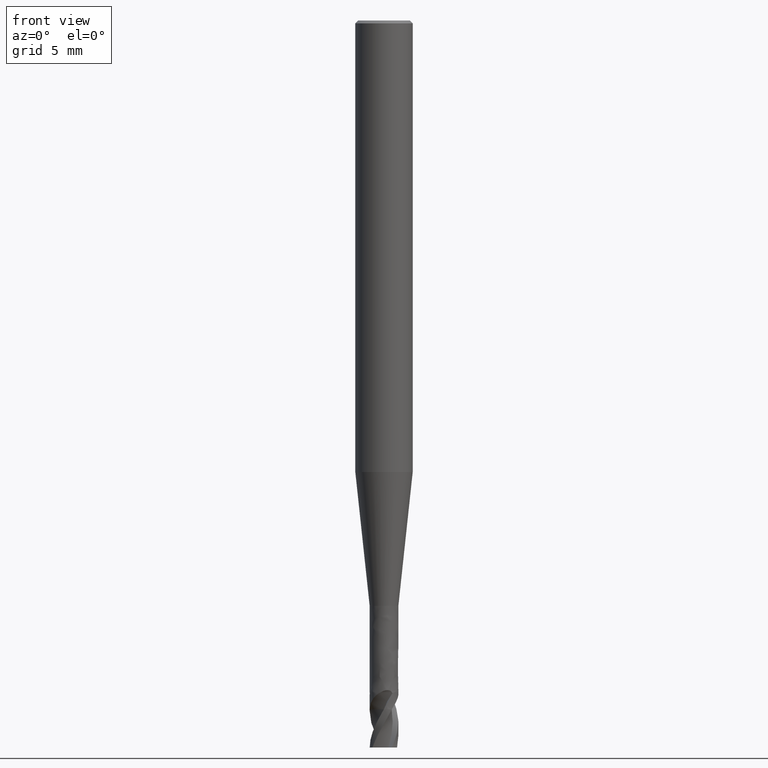
[diagram: clean part render]
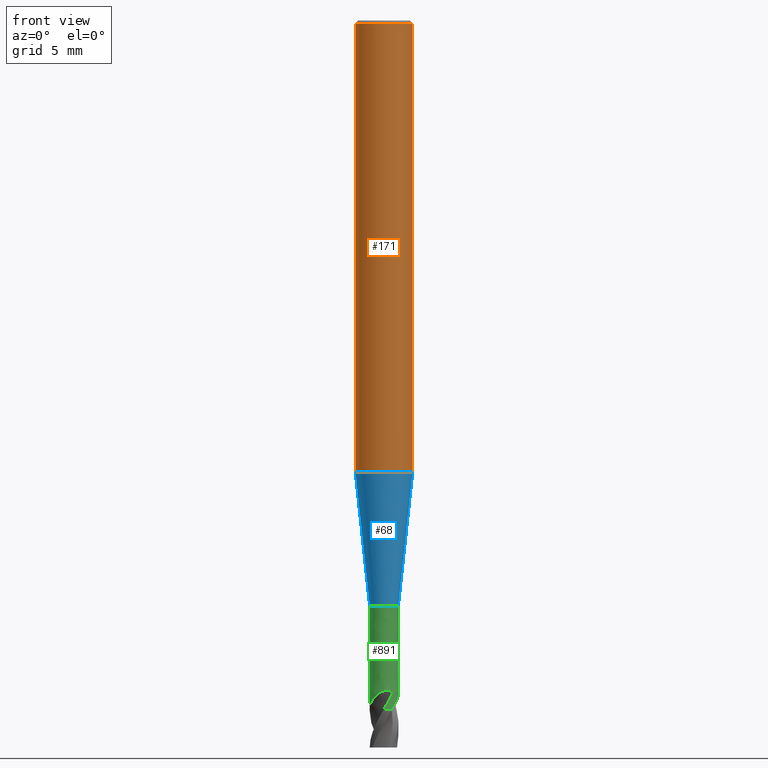
[diagram: same view with three faces highlighted in distinct colors, each labeled with its STEP entity id]
A machine part, front view with three faces highlighted in distinct colors.
Their STEP definitions:

[orange] entity #171 — the highlighted face is a freeform B-spline surface patch.
#73 = VERTEX_POINT('', #74);
#74 = CARTESIAN_POINT('', (-1.5, 1.53693173292993E-15, -23.6));
#82 = EDGE_CURVE('', #73, #73, #83, .T.);
#83 = CIRCLE('', #84, 1.5);
#84 = AXIS2_PLACEMENT_3D('', #85, #86, #87);
#85 = CARTESIAN_POINT('', (8.84858271770496E-32, 1.44508322299388E-15, -23.6));
#86 = DIRECTION('', (3.74939945665464E-33, 6.12323399573677E-17, -1.));
#87 = DIRECTION('', (-1., 6.12323399573677E-17, 0.));
#120 = VERTEX_POINT('', #121);
#121 = CARTESIAN_POINT('', (-1.5, 1.01033360929657E-16, -0.149999999999999));
#137 = EDGE_CURVE('', #120, #120, #138, .T.);
#138 = CIRCLE('', #139, 1.5);
#139 = AXIS2_PLACEMENT_3D('', #140, #141, #142);
#140 = CARTESIAN_POINT('', (5.62409918498176E-34, 9.18485099360502E-18, -0.149999999999999));
#141 = DIRECTION('', (3.74939945665464E-33, 6.12323399573677E-17, -1.));
#142 = DIRECTION('', (-1., 6.12323399573677E-17, 0.));
#171 = ADVANCED_FACE('', (#172), #183, .T.);
#172 = FACE_OUTER_BOUND('', #173, .T.);
#173 = EDGE_LOOP('', (#174, #180, #181, #182));
#174 = ORIENTED_EDGE('', *, *, #175, .T.);
#175 = EDGE_CURVE('', #73, #120, #176, .T.);
#176 = LINE('', #177, #178);
#177 = CARTESIAN_POINT('', (-1.5, 1.53693173292993E-15, -23.6));
#178 = VECTOR('', #179, 23.45);
#179 = DIRECTION('', (0., -1.43589837200027E-15, 23.45));
#180 = ORIENTED_EDGE('', *, *, #137, .T.);
#181 = ORIENTED_EDGE('', *, *, #175, .F.);
#182 = ORIENTED_EDGE('', *, *, #82, .F.);
#183 = (
   BOUNDED_SURFACE ()
   B_SPLINE_SURFACE (1, 2, ((#184, #185, #186, #187, #188, #189, #190, #191, #192), (#193, #194, #195, #196, #197, #198, #199, #200, #201)), .UNSPECIFIED., .F., .T., .U.)
   B_SPLINE_SURFACE_WITH_KNOTS ((2, 2), (3, 2, 2, 2, 3), (0., 1.), (0., 2.35619449019235, 4.71238898038469, 7.06858347057704, 9.42477796076938), .UNSPECIFIED.)
   GEOMETRIC_REPRESENTATION_ITEM ()
   RATIONAL_B_SPLINE_SURFACE (((1., 0.707106781186548, 1., 0.707106781186548, 1., 0.707106781186548, 1., 0.707106781186548, 1.), (1., 0.707106781186548, 1., 0.707106781186548, 1., 0.707106781186548, 1., 0.707106781186548, 1.)))
   REPRESENTATION_ITEM ('')
   SURFACE ()
);
#184 = CARTESIAN_POINT('', (-1.5, 1.53693173292993E-15, -23.6));
#185 = CARTESIAN_POINT('', (-1.5, 1.5, -23.6));
#186 = CARTESIAN_POINT('', (8.62816615085482E-32, 1.5, -23.6));
#187 = CARTESIAN_POINT('', (1.5, 1.5, -23.6));
#188 = CARTESIAN_POINT('', (1.5, 1.53693173292993E-15, -23.6));
#189 = CARTESIAN_POINT('', (1.5, -1.5, -23.6));
#190 = CARTESIAN_POINT('', (1.83697019872103E-16, -1.5, -23.6));
#191 = CARTESIAN_POINT('', (-1.5, -1.5, -23.6));
#192 = CARTESIAN_POINT('', (-1.5, 1.53693173292993E-15, -23.6));
#193 = CARTESIAN_POINT('', (-1.5, 1.01033360929657E-16, -0.149999999999999));
#194 = CARTESIAN_POINT('', (-1.5, 1.5, -0.149999999999995));
#195 = CARTESIAN_POINT('', (0., 1.5, -0.149999999999998));
#196 = CARTESIAN_POINT('', (1.5, 1.5, -0.149999999999995));
#197 = CARTESIAN_POINT('', (1.5, 1.01033360929656E-16, -0.149999999999999));
#198 = CARTESIAN_POINT('', (1.5, -1.5, -0.149999999999995));
#199 = CARTESIAN_POINT('', (1.83697019872103E-16, -1.5, -0.149999999999999));
#200 = CARTESIAN_POINT('', (-1.5, -1.5, -0.149999999999995));
#201 = CARTESIAN_POINT('', (-1.5, 1.01033360929657E-16, -0.149999999999999));

[blue] entity #68 — the highlighted face is a freeform B-spline surface patch.
#68 = ADVANCED_FACE('', (#69), #96, .T.);
#69 = FACE_OUTER_BOUND('', #70, .T.);
#70 = EDGE_LOOP('', (#71, #81, #88, #89));
#71 = ORIENTED_EDGE('', *, *, #72, .F.);
#72 = EDGE_CURVE('', #73, #75, #77, .T.);
#73 = VERTEX_POINT('', #74);
#74 = CARTESIAN_POINT('', (-1.5, 1.53693173292993E-15, -23.6));
#75 = VERTEX_POINT('', #76);
#76 = CARTESIAN_POINT('', (-0.75, 1.91963385766348E-15, -30.6));
#77 = LINE('', #78, #79);
#78 = CARTESIAN_POINT('', (-1.5, 1.53693173292993E-15, -23.6));
#79 = VECTOR('', #80, 7.04006392016436);
#80 = DIRECTION('', (0.75, 3.82702124733548E-16, -7.));
#81 = ORIENTED_EDGE('', *, *, #82, .T.);
#82 = EDGE_CURVE('', #73, #73, #83, .T.);
#83 = CIRCLE('', #84, 1.5);
#84 = AXIS2_PLACEMENT_3D('', #85, #86, #87);
#85 = CARTESIAN_POINT('', (8.84858271770496E-32, 1.44508322299388E-15, -23.6));
#86 = DIRECTION('', (3.74939945665464E-33, 6.12323399573677E-17, -1.));
#87 = DIRECTION('', (-1., 6.12323399573677E-17, 0.));
#88 = ORIENTED_EDGE('', *, *, #72, .T.);
#89 = ORIENTED_EDGE('', *, *, #90, .F.);
#90 = EDGE_CURVE('', #75, #75, #91, .T.);
#91 = CIRCLE('', #92, 0.75);
#92 = AXIS2_PLACEMENT_3D('', #93, #94, #95);
#93 = CARTESIAN_POINT('', (1.14731623373632E-31, 1.87370960269545E-15, -30.6));
#94 = DIRECTION('', (3.74939945665464E-33, 6.12323399573677E-17, -1.));
#95 = DIRECTION('', (-1., 6.12323399573677E-17, 0.));
#96 = (
   BOUNDED_SURFACE ()
   B_SPLINE_SURFACE (2, 1, ((#97, #98), (#99, #100), (#101, #102), (#103, #104), (#105, #106), (#107, #108), (#109, #110), (#111, #112), (#113, #114)), .UNSPECIFIED., .T., .F., .U.)
   B_SPLINE_SURFACE_WITH_KNOTS ((3, 2, 2, 2, 3), (2, 2), (0., 0.25, 0.5, 0.75, 1.), (0., 1.), .UNSPECIFIED.)
   GEOMETRIC_REPRESENTATION_ITEM ()
   RATIONAL_B_SPLINE_SURFACE (((1., 1.), (0.707106781186548, 0.707106781186548), (1., 1.), (0.707106781186548, 0.707106781186548), (1., 1.), (0.707106781186548, 0.707106781186548), (1., 1.), (0.707106781186548, 0.707106781186548), (1., 1.)))
   REPRESENTATION_ITEM ('')
   SURFACE ()
);
#97 = CARTESIAN_POINT('', (-1.5, 1.53693173292993E-15, -23.6));
#98 = CARTESIAN_POINT('', (-0.75, 1.91963385766348E-15, -30.6));
#99 = CARTESIAN_POINT('', (-1.5, 1.5, -23.6));
#100 = CARTESIAN_POINT('', (-0.75, 0.750000000000002, -30.6));
#101 = CARTESIAN_POINT('', (8.62816615085482E-32, 1.5, -23.6));
#102 = CARTESIAN_POINT('', (1.10933564796705E-31, 0.750000000000002, -30.6));
#103 = CARTESIAN_POINT('', (1.5, 1.5, -23.6));
#104 = CARTESIAN_POINT('', (0.75, 0.750000000000002, -30.6));
#105 = CARTESIAN_POINT('', (1.5, 1.53693173292993E-15, -23.6));
#106 = CARTESIAN_POINT('', (0.75, 1.91963385766348E-15, -30.6));
#107 = CARTESIAN_POINT('', (1.5, -1.5, -23.6));
#108 = CARTESIAN_POINT('', (0.75, -0.749999999999998, -30.6));
#109 = CARTESIAN_POINT('', (1.83697019872103E-16, -1.5, -23.6));
#110 = CARTESIAN_POINT('', (9.18485099360516E-17, -0.749999999999998, -30.6));
#111 = CARTESIAN_POINT('', (-1.5, -1.5, -23.6));
#112 = CARTESIAN_POINT('', (-0.75, -0.749999999999998, -30.6));
#113 = CARTESIAN_POINT('', (-1.5, 1.53693173292993E-15, -23.6));
#114 = CARTESIAN_POINT('', (-0.75, 1.91963385766348E-15, -30.6));

[green] entity #891 — the highlighted face is a freeform B-spline surface patch.
#75 = VERTEX_POINT('', #76);
#76 = CARTESIAN_POINT('', (-0.75, 1.91963385766348E-15, -30.6));
#90 = EDGE_CURVE('', #75, #75, #91, .T.);
#91 = CIRCLE('', #92, 0.75);
#92 = AXIS2_PLACEMENT_3D('', #93, #94, #95);
#93 = CARTESIAN_POINT('', (1.14731623373632E-31, 1.87370960269545E-15, -30.6));
#94 = DIRECTION('', (3.74939945665464E-33, 6.12323399573677E-17, -1.));
#95 = DIRECTION('', (-1., 6.12323399573677E-17, 0.));
#207 = VERTEX_POINT('', #208);
#208 = CARTESIAN_POINT('', (0.412730714032377, -0.626221492520275, -36.));
#217 = VERTEX_POINT('', #218);
#218 = CARTESIAN_POINT('', (0.305948012529034, 0.684759675820312, -35.1664192301326));
#231 = EDGE_CURVE('', #232, #217, #234, .T.);
#232 = VERTEX_POINT('', #233);
#233 = CARTESIAN_POINT('', (0.533308015772824, 0.527335339525483, -35.));
#234 = B_SPLINE_CURVE_WITH_KNOTS('', 3, (#235, #236, #237, #238, #239, #240, #241, #242, #243, #244, #245, #246, #247, #248, #249, #250, #251, #252, #253, #254, #255, #256, #257, #258, #259), .UNSPECIFIED., .F., .U., (4, 3, 3, 3, 3, 3, 3, 3, 4), (0., 0.0585353742336296, 0.116890891888409, 0.155662755407077, 0.194374371258988, 0.233045707919757, 0.271704922894369, 0.310379594181349, 0.343037971171947), .UNSPECIFIED.);
#235 = CARTESIAN_POINT('', (0.533308015772798, 0.527335339525508, -35.));
#236 = CARTESIAN_POINT('', (0.519589060862122, 0.54120967730168, -35.0000550591145));
#237 = CARTESIAN_POINT('', (0.505268292275769, 0.554595342149171, -35.0014093571018));
#238 = CARTESIAN_POINT('', (0.490680775997601, 0.56721457674005, -35.0043537231199));
#239 = CARTESIAN_POINT('', (0.476138081518321, 0.579795037300851, -35.0072890422395));
#240 = CARTESIAN_POINT('', (0.46120835435421, 0.591713430422146, -35.0118422465358));
#241 = CARTESIAN_POINT('', (0.44643696380067, 0.602655819977242, -35.0182018204926));
#242 = CARTESIAN_POINT('', (0.436622736088547, 0.609926029401278, -35.0224271712975));
#243 = CARTESIAN_POINT('', (0.426826784105123, 0.616807666142846, -35.0274706638161));
#244 = CARTESIAN_POINT('', (0.417250888943737, 0.623218818454372, -35.0333211302912));
#245 = CARTESIAN_POINT('', (0.407689873782646, 0.629620008465072, -35.0391625057161));
#246 = CARTESIAN_POINT('', (0.398299526162656, 0.635585391784314, -35.0458402123426));
#247 = CARTESIAN_POINT('', (0.389281918782978, 0.64106129793386, -35.053270361756));
#248 = CARTESIAN_POINT('', (0.380273694166673, 0.646531506437736, -35.060692780146));
#249 = CARTESIAN_POINT('', (0.371590235800292, 0.651543120035014, -35.0689053052636));
#250 = CARTESIAN_POINT('', (0.363396216650571, 0.656081694397927, -35.0777609802517));
#251 = CARTESIAN_POINT('', (0.355204765949139, 0.660618846126435, -35.0866138793929));
#252 = CARTESIAN_POINT('', (0.347461109829589, 0.664707390731621, -35.0961522317971));
#253 = CARTESIAN_POINT('', (0.340268727956991, 0.668369054321439, -35.1061981910026));
#254 = CARTESIAN_POINT('', (0.333073470503475, 0.672032181878289, -35.1162481666758));
#255 = CARTESIAN_POINT('', (0.326397395928629, 0.675285466685287, -35.1268480646704));
#256 = CARTESIAN_POINT('', (0.320283192277829, 0.678173043363068, -35.137823977343));
#257 = CARTESIAN_POINT('', (0.315120124016863, 0.680611423951554, -35.1470924593223));
#258 = CARTESIAN_POINT('', (0.310341555348009, 0.682796657639055, -35.1566544427268));
#259 = CARTESIAN_POINT('', (0.305948012529034, 0.684759675820312, -35.1664192301326));
#261 = EDGE_CURVE('', #232, #262, #264, .T.);
#262 = VERTEX_POINT('', #263);
#263 = CARTESIAN_POINT('', (0.535062832541121, 0.525554721444946, -35.));
#264 = LINE('', #265, #266);
#265 = CARTESIAN_POINT('', (0.533308015772824, 0.527335339525483, -35.));
#266 = VECTOR('', #267, 0.00249999652780367);
#267 = DIRECTION('', (0.00175481676829714, -0.00178061808053653, 0.));
#269 = EDGE_CURVE('', #207, #262, #270, .T.);
#270 = B_SPLINE_CURVE_WITH_KNOTS('', 3, (#271, #272, #273, #274, #275, #276, #277, #278, #279, #280, #281, #282, #283, #284, #285, #286, #287, #288, #289, #290, #291, #292, #293, #294, #295, #296, #297, #298, #299, #300, #301, #302, #303, #304, #305, #306, #307, #308, #309, #310, #311, #312, #313, #314, #315, #316, #317, #318, #319, #320, #321, #322, #323, #324, #325, #326, #327, #328, #329, #330, #331), .UNSPECIFIED., .F., .U., (4, 3, 3, 3, 3, 3, 3, 3, 3, 3, 3, 3, 3, 3, 3, 3, 3, 3, 3, 3, 4), (2.30614614047965, 2.42223224211193, 2.5540024774012, 2.68583958237017, 2.77364457457117, 2.86146551179091, 2.94929912761922, 3.03713639095235, 3.12497101159486, 3.21279121890304, 3.30058516563948, 3.35904389773056, 3.3850298447204, 3.47388487001164, 3.5627505839933, 3.65161437347767, 3.740456099929, 3.82924297418179, 3.88809016196585, 3.94687243074505, 4.01036243626729), .UNSPECIFIED.);
#271 = CARTESIAN_POINT('', (0.412730714032377, -0.626221492520275, -36.));
#272 = CARTESIAN_POINT('', (0.431167434651654, -0.614070199477003, -35.9682232025881));
#273 = CARTESIAN_POINT('', (0.449583532476771, -0.600761761174832, -35.9368414307951));
#274 = CARTESIAN_POINT('', (0.467749176156641, -0.586268460864799, -35.9059014068877));
#275 = CARTESIAN_POINT('', (0.488369139341036, -0.569817003152656, -35.8707811455229));
#276 = CARTESIAN_POINT('', (0.508701549880662, -0.551810335775949, -35.8361758033364));
#277 = CARTESIAN_POINT('', (0.528417913014803, -0.532235388907087, -35.8021559182579));
#278 = CARTESIAN_POINT('', (0.548144281647413, -0.512650508304523, -35.7681187690467));
#279 = CARTESIAN_POINT('', (0.567280997472017, -0.491467725140482, -35.7346063060689));
#280 = CARTESIAN_POINT('', (0.585483293391812, -0.468731600341897, -35.7016978003833));
#281 = CARTESIAN_POINT('', (0.597606226853179, -0.453589085940577, -35.6797803660939));
#282 = CARTESIAN_POINT('', (0.609327791642834, -0.437742340521959, -35.6581096437874));
#283 = CARTESIAN_POINT('', (0.620542290025196, -0.421221160781701, -35.6367105589949));
#284 = CARTESIAN_POINT('', (0.631758824913483, -0.404696980864415, -35.6153075882183));
#285 = CARTESIAN_POINT('', (0.642478416366102, -0.387482953119595, -35.5941566443733));
#286 = CARTESIAN_POINT('', (0.652596966037975, -0.369617640160786, -35.5732905982617));
#287 = CARTESIAN_POINT('', (0.662716976513326, -0.351749748007118, -35.552421539743));
#288 = CARTESIAN_POINT('', (0.672246399111578, -0.333211220454535, -35.5318175076284));
#289 = CARTESIAN_POINT('', (0.68107914835708, -0.31405603588085, -35.5115134383266));
#290 = CARTESIAN_POINT('', (0.689912264404006, -0.294900055841471, -35.4912085258489));
#291 = CARTESIAN_POINT('', (0.69805826440069, -0.275106370526528, -35.47118045728));
#292 = CARTESIAN_POINT('', (0.705412819321859, -0.254740562801422, -35.4514723528884));
#293 = CARTESIAN_POINT('', (0.712767152972321, -0.234375367806346, -35.431764841439));
#294 = CARTESIAN_POINT('', (0.719339249172552, -0.213412369426584, -35.4123535570633));
#295 = CARTESIAN_POINT('', (0.725025902204983, -0.191930823819026, -35.3932900166325));
#296 = CARTESIAN_POINT('', (0.730711622078816, -0.170452803253151, -35.3742296044577));
#297 = CARTESIAN_POINT('', (0.735519595330256, -0.148427738404312, -35.3554896981371));
#298 = CARTESIAN_POINT('', (0.739348608826611, -0.125950921497837, -35.3371304103628));
#299 = CARTESIAN_POINT('', (0.743176477346353, -0.103480825755895, -35.3187766125025));
#300 = CARTESIAN_POINT('', (0.746031721842164, -0.0805247889293392, -35.3007750700672));
#301 = CARTESIAN_POINT('', (0.747816152317804, -0.0571926772637411, -35.2832009968611));
#302 = CARTESIAN_POINT('', (0.749004338371494, -0.0416566896964778, -35.2714990734884));
#303 = CARTESIAN_POINT('', (0.749719099651332, -0.0259396097338162, -35.2599761457397));
#304 = CARTESIAN_POINT('', (0.749932267423181, -0.0100793987010551, -35.2486570480766));
#305 = CARTESIAN_POINT('', (0.75002702429219, -0.00302925258254455, -35.2436255076834));
#306 = CARTESIAN_POINT('', (0.750022737235978, 0.00405095701004607, -35.2386329641551));
#307 = CARTESIAN_POINT('', (0.749916999596955, 0.0111576751835321, -35.2336818719282));
#308 = CARTESIAN_POINT('', (0.749555445692712, 0.0354580258034165, -35.2167523590186));
#309 = CARTESIAN_POINT('', (0.748005606606646, 0.0601024327073852, -35.2002832074438));
#310 = CARTESIAN_POINT('', (0.745175127599913, 0.0849354414037687, -35.1843911894312));
#311 = CARTESIAN_POINT('', (0.742344308104685, 0.109771437352043, -35.1684972597107));
#312 = CARTESIAN_POINT('', (0.738225623960115, 0.134853537288742, -35.1531433830948));
#313 = CARTESIAN_POINT('', (0.732734386486197, 0.160000996436575, -35.138483613481));
#314 = CARTESIAN_POINT('', (0.72724326793184, 0.185147910984978, -35.1238241613426));
#315 = CARTESIAN_POINT('', (0.720363957983243, 0.210429069032256, -35.1098177961814));
#316 = CARTESIAN_POINT('', (0.712024305875882, 0.23562976858192, -35.0966726763182));
#317 = CARTESIAN_POINT('', (0.703686724330907, 0.260824211321359, -35.0835308201153));
#318 = CARTESIAN_POINT('', (0.693860300432305, 0.286022666893705, -35.0712042882019));
#319 = CARTESIAN_POINT('', (0.68249738501989, 0.310961926031168, -35.0599837221541));
#320 = CARTESIAN_POINT('', (0.671141485239849, 0.335885787300438, -35.0487700838501));
#321 = CARTESIAN_POINT('', (0.658199405720115, 0.360657757749366, -35.0386105958299));
#322 = CARTESIAN_POINT('', (0.643678106967463, 0.384939598652548, -35.0299258339283));
#323 = CARTESIAN_POINT('', (0.634053513222527, 0.40103339701405, -35.0241696473435));
#324 = CARTESIAN_POINT('', (0.623707633147038, 0.416959098171846, -35.0190459771982));
#325 = CARTESIAN_POINT('', (0.612671544752677, 0.432589387584081, -35.0147244450282));
#326 = CARTESIAN_POINT('', (0.601647631143605, 0.448202433983139, -35.0104076802834));
#327 = CARTESIAN_POINT('', (0.589898017377818, 0.463570795705907, -35.0068773868581));
#328 = CARTESIAN_POINT('', (0.577500365926438, 0.478532472623156, -35.004352548389));
#329 = CARTESIAN_POINT('', (0.56410981507738, 0.494692395841946, -35.0016255014125));
#330 = CARTESIAN_POINT('', (0.549892761508066, 0.510456495749858, -35.0000595273375));
#331 = CARTESIAN_POINT('', (0.535062832543075, 0.52555472144296, -35.));
#358 = VERTEX_POINT('', #359);
#359 = CARTESIAN_POINT('', (0.652620279086739, 0.369576475610595, -36.));
#365 = EDGE_CURVE('', #217, #358, #366, .T.);
#366 = B_SPLINE_CURVE_WITH_KNOTS('', 3, (#367, #368, #369, #370, #371, #372, #373, #374, #375, #376, #377, #378, #379, #380, #381, #382, #383, #384, #385, #386, #387, #388), .UNSPECIFIED., .F., .U., (4, 3, 3, 3, 3, 3, 3, 4), (0., 0.131439327613812, 0.262857615134258, 0.394263896320019, 0.525661435813807, 0.657053745408735, 0.78844284917689, 0.96006990639764), .UNSPECIFIED.);
#367 = CARTESIAN_POINT('', (0.305948012529034, 0.684759675820312, -35.1664192301326));
#368 = CARTESIAN_POINT('', (0.325797782706001, 0.675890874181947, -35.2044576254667));
#369 = CARTESIAN_POINT('', (0.345271332514822, 0.66615353389917, -35.2425015815967));
#370 = CARTESIAN_POINT('', (0.364278706340865, 0.655592117178532, -35.2805379425591));
#371 = CARTESIAN_POINT('', (0.383283037569786, 0.645032391072094, -35.3185682148676));
#372 = CARTESIAN_POINT('', (0.401829949234762, 0.633644469376456, -35.3566088366729));
#373 = CARTESIAN_POINT('', (0.419844315052882, 0.621474658467889, -35.3946397761745));
#374 = CARTESIAN_POINT('', (0.437857035084032, 0.609305959389537, -35.4326672411811));
#375 = CARTESIAN_POINT('', (0.455343186344119, 0.596351521973363, -35.4707044244007));
#376 = CARTESIAN_POINT('', (0.472231382796249, 0.582664158072508, -35.5087316292026));
#377 = CARTESIAN_POINT('', (0.489118455775361, 0.568977704711986, -35.5467563042768));
#378 = CARTESIAN_POINT('', (0.505413537515218, 0.554553531157607, -35.5847900810381));
#379 = CARTESIAN_POINT('', (0.521047747820442, 0.539452726836418, -35.6228151429168));
#380 = CARTESIAN_POINT('', (0.536681335851163, 0.524352523559052, -35.6608386913179));
#381 = CARTESIAN_POINT('', (0.551662008399161, 0.508568024603748, -35.6988706599053));
#382 = CARTESIAN_POINT('', (0.565924978369601, 0.492167571927865, -35.7368944457031));
#383 = CARTESIAN_POINT('', (0.580187600339376, 0.475767519404855, -35.7749173037625));
#384 = CARTESIAN_POINT('', (0.593740978942332, 0.45874183206414, -35.8129480782257));
#385 = CARTESIAN_POINT('', (0.60652604046744, 0.441164552332679, -35.8509704832293));
#386 = CARTESIAN_POINT('', (0.623226531018106, 0.418204225275575, -35.9006372614635));
#387 = CARTESIAN_POINT('', (0.638629910793193, 0.394281505997541, -35.950333080104));
#388 = CARTESIAN_POINT('', (0.652620279086739, 0.369576475610595, -36.));
#416 = VERTEX_POINT('', #417);
#417 = CARTESIAN_POINT('', (0.335958363902179, 0.67054602953427, -36.));
#426 = VERTEX_POINT('', #427);
#427 = CARTESIAN_POINT('', (-0.745993281012101, -0.0774210868226493, -35.1664192301326));
#440 = EDGE_CURVE('', #426, #441, #443, .T.);
#441 = VERTEX_POINT('', #442);
#442 = CARTESIAN_POINT('', (-0.75, 2.19309499643253E-15, -35.0659593110348));
#443 = B_SPLINE_CURVE_WITH_KNOTS('', 3, (#444, #445, #446, #447, #448, #449, #450, #451, #452, #453), .UNSPECIFIED., .F., .U., (4, 3, 3, 4), (0., 0.059080454516723, 0.0983524895542982, 0.127743797546663), .UNSPECIFIED.);
#444 = CARTESIAN_POINT('', (-0.745993281012101, -0.0774210868226493, -35.1664192301326));
#445 = CARTESIAN_POINT('', (-0.746891919839182, -0.0687622245595255, -35.1487542960069));
#446 = CARTESIAN_POINT('', (-0.747797417195318, -0.0586162318125175, -35.1317144968693));
#447 = CARTESIAN_POINT('', (-0.748529567368742, -0.0469413120264408, -35.1158717209379));
#448 = CARTESIAN_POINT('', (-0.749016243165309, -0.0391807444639501, -35.1053406907256));
#449 = CARTESIAN_POINT('', (-0.749426617595761, -0.0307089682136165, -35.095288623071));
#450 = CARTESIAN_POINT('', (-0.749689296094048, -0.0215860909386131, -35.0859040628902));
#451 = CARTESIAN_POINT('', (-0.749885885464544, -0.0147585024138621, -35.0788806300993));
#452 = CARTESIAN_POINT('', (-0.75, -0.00754546274576876, -35.0722082479494));
#453 = CARTESIAN_POINT('', (-0.75, 2.18615610252862E-15, -35.0659593110348));
#455 = EDGE_CURVE('', #456, #441, #458, .T.);
#456 = VERTEX_POINT('', #457);
#457 = CARTESIAN_POINT('', (-0.723339808228753, 0.198190619938464, -35.));
#458 = B_SPLINE_CURVE_WITH_KNOTS('', 3, (#459, #460, #461, #462, #463, #464, #465, #466, #467, #468, #469, #470, #471, #472, #473, #474), .UNSPECIFIED., .F., .U., (4, 3, 3, 3, 3, 4), (0., 0.058232439939446, 0.11629248929954, 0.154948506002185, 0.19356166566524, 0.215270059467336), .UNSPECIFIED.);
#459 = CARTESIAN_POINT('', (-0.723339808228773, 0.198190619938387, -35.));
#460 = CARTESIAN_POINT('', (-0.728469175972053, 0.179469875833989, -35.0000547741706));
#461 = CARTESIAN_POINT('', (-0.73288188188083, 0.160475677869874, -35.001395290688));
#462 = CARTESIAN_POINT('', (-0.736505915793232, 0.14162992622173, -35.0043079692655));
#463 = CARTESIAN_POINT('', (-0.740119221161435, 0.122839965298625, -35.0072120251862));
#464 = CARTESIAN_POINT('', (-0.742973543404568, 0.104044695917635, -35.0117156127422));
#465 = CARTESIAN_POINT('', (-0.745068883867842, 0.0858624381899828, -35.0180058591789));
#466 = CARTESIAN_POINT('', (-0.746463948406001, 0.0737568050367494, -35.0221938658031));
#467 = CARTESIAN_POINT('', (-0.747533256442246, 0.0618578080240755, -35.0271942959946));
#468 = CARTESIAN_POINT('', (-0.748306051070846, 0.0503791021233677, -35.0329972312775));
#469 = CARTESIAN_POINT('', (-0.749077988919755, 0.0389131224007606, -35.0387937329791));
#470 = CARTESIAN_POINT('', (-0.749558483368336, 0.0278081584301228, -35.045422415091));
#471 = CARTESIAN_POINT('', (-0.749801249737693, 0.0172651641114176, -35.0528014628822));
#472 = CARTESIAN_POINT('', (-0.749937733464844, 0.0113378721073216, -35.056949977967));
#473 = CARTESIAN_POINT('', (-0.75, 0.00557307203704092, -35.0613438518172));
#474 = CARTESIAN_POINT('', (-0.75, 2.18615610252862E-15, -35.0659593110348));
#476 = EDGE_CURVE('', #456, #477, #479, .T.);
#477 = VERTEX_POINT('', #478);
#478 = CARTESIAN_POINT('', (-0.722675156120754, 0.200600644878936, -35.));
#479 = LINE('', #480, #481);
#480 = CARTESIAN_POINT('', (-0.723339808228752, 0.198190619938464, -35.));
#481 = VECTOR('', #482, 0.00249999652767071);
#482 = DIRECTION('', (0.000664652107998709, 0.00241002494047229, 0.));
#484 = EDGE_CURVE('', #416, #477, #485, .T.);
#485 = B_SPLINE_CURVE_WITH_KNOTS('', 3, (#486, #487, #488, #489, #490, #491, #492, #493, #494, #495, #496, #497, #498, #499, #500, #501, #502, #503, #504, #505, #506, #507, #508, #509, #510, #511, #512, #513, #514, #515, #516, #517, #518, #519, #520, #521, #522, #523, #524, #525, #526, #527, #528, #529, #530, #531, #532, #533, #534, #535, #536, #537, #538, #539, #540, #541, #542, #543, #544, #545, #546, #547, #548, #549), .UNSPECIFIED., .F., .U., (4, 3, 3, 3, 3, 3, 3, 3, 3, 3, 3, 3, 3, 3, 3, 3, 3, 3, 3, 3, 3, 4), (2.30612510352269, 2.371587587487, 2.50302711692117, 2.63447964834223, 2.76593998907335, 2.8243320576824, 2.85028131069032, 2.86760173558293, 2.95592294870109, 3.04428150147179, 3.13267413938953, 3.22109318040788, 3.30953241081303, 3.39798250845385, 3.48643030266549, 3.57486323486648, 3.66326264735766, 3.75160056549976, 3.83983449729591, 3.8984075905445, 3.95689519630575, 4.01033736047654), .UNSPECIFIED.);
#486 = CARTESIAN_POINT('', (0.335958363902179, 0.67054602953427, -36.));
#487 = CARTESIAN_POINT('', (0.324825765196382, 0.676123707251304, -35.9820806447821));
#488 = CARTESIAN_POINT('', (0.313375649866845, 0.681513174195414, -35.9642832537249));
#489 = CARTESIAN_POINT('', (0.301632714463358, 0.686671468437032, -35.9466298120573));
#490 = CARTESIAN_POINT('', (0.278054539451671, 0.697028603191815, -35.9111841655561));
#491 = CARTESIAN_POINT('', (0.253248547113622, 0.7064728839948, -35.8762469652485));
#492 = CARTESIAN_POINT('', (0.227347208214993, 0.714712002779338, -35.8418837291086));
#493 = CARTESIAN_POINT('', (0.201443307158159, 0.722951936576793, -35.8075170937603));
#494 = CARTESIAN_POINT('', (0.174401047589783, 0.729998830392861, -35.773673440397));
#495 = CARTESIAN_POINT('', (0.14641903268049, 0.735568804986259, -35.7404175168832));
#496 = CARTESIAN_POINT('', (0.11843535542032, 0.741139110479779, -35.7071596177071));
#497 = CARTESIAN_POINT('', (0.089457692627482, 0.745242687526989, -35.6744339758239));
#498 = CARTESIAN_POINT('', (0.0597305788276279, 0.747617721802339, -35.6423269630194));
#499 = CARTESIAN_POINT('', (0.0465263861494711, 0.748672664788062, -35.6280656665396));
#500 = CARTESIAN_POINT('', (0.033167124472436, 0.749387777494932, -35.6139171318363));
#501 = CARTESIAN_POINT('', (0.0196773559081972, 0.749741823339641, -35.5998904079888));
#502 = CARTESIAN_POINT('', (0.0136825448691255, 0.749899160207809, -35.593656975698));
#503 = CARTESIAN_POINT('', (0.00766116878804084, 0.749985237902457, -35.5874467709093));
#504 = CARTESIAN_POINT('', (0.00161547534385813, 0.749998260157593, -35.581260688659));
#505 = CARTESIAN_POINT('', (-0.0024198615959651, 0.750006952160864, -35.5771316459862));
#506 = CARTESIAN_POINT('', (-0.00646622568201501, 0.749983098502021, -35.57301315214));
#507 = CARTESIAN_POINT('', (-0.0105229328405245, 0.7499261749562, -35.5689054885824));
#508 = CARTESIAN_POINT('', (-0.0312091053637894, 0.749635907445264, -35.5479594765338));
#509 = CARTESIAN_POINT('', (-0.052179117868881, 0.748484489095577, -35.5272823554037));
#510 = CARTESIAN_POINT('', (-0.0733303052608917, 0.746406502068685, -35.5069096616335));
#511 = CARTESIAN_POINT('', (-0.0944904347627322, 0.744327636529023, -35.486528354878));
#512 = CARTESIAN_POINT('', (-0.11585570764041, 0.741319031764829, -35.4664282526943));
#513 = CARTESIAN_POINT('', (-0.137314527431433, 0.737322670583491, -35.4466540630014));
#514 = CARTESIAN_POINT('', (-0.158781625165055, 0.733324767768047, -35.4268722452279));
#515 = CARTESIAN_POINT('', (-0.180370069625375, 0.728333033222459, -35.4073924277494));
#516 = CARTESIAN_POINT('', (-0.201955786162882, 0.722297625937877, -35.388267299595));
#517 = CARTESIAN_POINT('', (-0.223547950407562, 0.716260415862142, -35.3691364587173));
#518 = CARTESIAN_POINT('', (-0.245166900722267, 0.709170486688702, -35.3503327802102));
#519 = CARTESIAN_POINT('', (-0.266675814491499, 0.70098788146845, -35.3319189230577));
#520 = CARTESIAN_POINT('', (-0.288189639553308, 0.692803407852206, -35.3135008613302));
#521 = CARTESIAN_POINT('', (-0.309627154906055, 0.68351276999614, -35.2954438301179));
#522 = CARTESIAN_POINT('', (-0.330839648845425, 0.673086269917786, -35.277826410558));
#523 = CARTESIAN_POINT('', (-0.352054749333603, 0.662658488651966, -35.2602068262048));
#524 = CARTESIAN_POINT('', (-0.373082107975007, 0.651075838907276, -35.2429955257289));
#525 = CARTESIAN_POINT('', (-0.393755330623533, 0.638323381684828, -35.2262844047688));
#526 = CARTESIAN_POINT('', (-0.414428014897252, 0.625571256563563, -35.2095737190019));
#527 = CARTESIAN_POINT('', (-0.434788269095879, 0.611623404927998, -35.1933291594173));
#528 = CARTESIAN_POINT('', (-0.454655475565504, 0.596480006821946, -35.1776704497041));
#529 = CARTESIAN_POINT('', (-0.474519343719722, 0.581339153282956, -35.1620143711464));
#530 = CARTESIAN_POINT('', (-0.493936669931858, 0.564967350668878, -35.1469067888684));
#531 = CARTESIAN_POINT('', (-0.512708634930268, 0.547384559215862, -35.1325057377068));
#532 = CARTESIAN_POINT('', (-0.531473484583708, 0.529808432362249, -35.1181101451345));
#533 = CARTESIAN_POINT('', (-0.549645290790963, 0.510972763311174, -35.1043796448064));
#534 = CARTESIAN_POINT('', (-0.567001982357372, 0.490926422188512, -35.0915280935902));
#535 = CARTESIAN_POINT('', (-0.584346599879167, 0.47089402614381, -35.0786854824536));
#536 = CARTESIAN_POINT('', (-0.600935742448342, 0.449583086425671, -35.0666752592513));
#537 = CARTESIAN_POINT('', (-0.616517542266384, 0.427090294993716, -35.0557965112946));
#538 = CARTESIAN_POINT('', (-0.63208100008067, 0.404623980789663, -35.044930569178));
#539 = CARTESIAN_POINT('', (-0.646706297575523, 0.380877285486551, -35.03514337987));
#540 = CARTESIAN_POINT('', (-0.660104244674908, 0.356037057287821, -35.0268679180888));
#541 = CARTESIAN_POINT('', (-0.668998319650564, 0.339547153993453, -35.0213743467981));
#542 = CARTESIAN_POINT('', (-0.677378761943798, 0.322526103548743, -35.0165320196227));
#543 = CARTESIAN_POINT('', (-0.685150727365141, 0.305071271657984, -35.012516275232));
#544 = CARTESIAN_POINT('', (-0.69291134959529, 0.287641915111578, -35.0085063918242));
#545 = CARTESIAN_POINT('', (-0.70009019505509, 0.269720464192784, -35.0053074030301));
#546 = CARTESIAN_POINT('', (-0.706586580914557, 0.25146650606289, -35.0031443322218));
#547 = CARTESIAN_POINT('', (-0.712522555128233, 0.23478722821509, -35.001167859023));
#548 = CARTESIAN_POINT('', (-0.717910493814944, 0.217765610015461, -35.0000501066225));
#549 = CARTESIAN_POINT('', (-0.722675156120717, 0.200600644879068, -35.));
#584 = VERTEX_POINT('', #585);
#585 = CARTESIAN_POINT('', (-0.75, 2.20755400736522E-15, -35.302092879387));
#607 = EDGE_CURVE('', #426, #584, #608, .T.);
#608 = B_SPLINE_CURVE_WITH_KNOTS('', 3, (#609, #610, #611, #612, #613, #614, #615), .UNSPECIFIED., .F., .U., (4, 3, 4), (0., 0.131064698996655, 0.156267692713995), .UNSPECIFIED.);
#609 = CARTESIAN_POINT('', (-0.745993281012101, -0.0774210868226493, -35.1664192301326));
#610 = CARTESIAN_POINT('', (-0.748231161936517, -0.0558579158335452, -35.2043492083613));
#611 = CARTESIAN_POINT('', (-0.749534113209341, -0.0341869337769475, -35.2422846962595));
#612 = CARTESIAN_POINT('', (-0.749895702855327, -0.0125073913827525, -35.280212633154));
#613 = CARTESIAN_POINT('', (-0.749965234480897, -0.00833853909118576, -35.2875059589891));
#614 = CARTESIAN_POINT('', (-0.75, -0.00416921513266555, -35.2947994295181));
#615 = CARTESIAN_POINT('', (-0.75, 2.21449290126913E-15, -35.302092879387));
#643 = VERTEX_POINT('', #644);
#644 = CARTESIAN_POINT('', (-0.748689077934556, -0.0443245370139925, -36.));
#653 = VERTEX_POINT('', #654);
#654 = CARTESIAN_POINT('', (0.440045268483069, -0.607338588997655, -35.1664192301326));
#667 = EDGE_CURVE('', #668, #653, #670, .T.);
#668 = VERTEX_POINT('', #669);
#669 = CARTESIAN_POINT('', (0.190031792456011, -0.725525959463859, -35.));
#670 = B_SPLINE_CURVE_WITH_KNOTS('', 3, (#671, #672, #673, #674, #675, #676, #677, #678, #679, #680, #681, #682, #683, #684, #685, #686, #687, #688, #689, #690, #691, #692, #693, #694, #695), .UNSPECIFIED., .F., .U., (4, 3, 3, 3, 3, 3, 3, 3, 4), (0., 0.058845169178536, 0.117496300445633, 0.156380479118913, 0.195185908073776, 0.233929425271675, 0.272639564382255, 0.311347337733252, 0.343035556004869), .UNSPECIFIED.);
#671 = CARTESIAN_POINT('', (0.190031792456017, -0.725525959463857, -35.));
#672 = CARTESIAN_POINT('', (0.209006693721657, -0.720556000150685, -35.0000553505115));
#673 = CARTESIAN_POINT('', (0.227858502223894, -0.71481213691471, -35.0014238167803));
#674 = CARTESIAN_POINT('', (0.246172211033921, -0.708448475553916, -35.0044007818458));
#675 = CARTESIAN_POINT('', (0.26442553164458, -0.702105797930221, -35.007367930573));
#676 = CARTESIAN_POINT('', (0.282293959305529, -0.695090638608494, -35.011971493542));
#677 = CARTESIAN_POINT('', (0.299223731111088, -0.687724624206489, -35.0184012604712));
#678 = CARTESIAN_POINT('', (0.310447730675347, -0.682841147725649, -35.022664029163));
#679 = CARTESIAN_POINT('', (0.321322267079762, -0.677779620946399, -35.0277505285029));
#680 = CARTESIAN_POINT('', (0.33167414336182, -0.672675451183704, -35.0336483089457));
#681 = CARTESIAN_POINT('', (0.342005054630082, -0.667581618579856, -35.0395341449791));
#682 = CARTESIAN_POINT('', (0.351868908078682, -0.662419529429317, -35.0462602438078));
#683 = CARTESIAN_POINT('', (0.361117917072523, -0.657338459219601, -35.0537406503607));
#684 = CARTESIAN_POINT('', (0.37035216982188, -0.652265495555604, -35.0612091223693));
#685 = CARTESIAN_POINT('', (0.379023166601914, -0.647247223637968, -35.0694690602195));
#686 = CARTESIAN_POINT('', (0.387036884630146, -0.642419216661355, -35.0783715952695));
#687 = CARTESIAN_POINT('', (0.395043698727102, -0.637595369080948, -35.0872664606598));
#688 = CARTESIAN_POINT('', (0.402435902819218, -0.63293770433108, -35.0968457196554));
#689 = CARTESIAN_POINT('', (0.409181826382219, -0.628546126357095, -35.1069305481594));
#690 = CARTESIAN_POINT('', (0.415927337669942, -0.624154816773199, -35.1170147603318));
#691 = CARTESIAN_POINT('', (0.422057803655283, -0.620010138831027, -35.1276464326436));
#692 = CARTESIAN_POINT('', (0.427591113870425, -0.616170300598014, -35.1386516576726));
#693 = CARTESIAN_POINT('', (0.432120972518506, -0.6130268071464, -35.1476611134655));
#694 = CARTESIAN_POINT('', (0.436264232724012, -0.610078126589831, -35.1569445181841));
#695 = CARTESIAN_POINT('', (0.440045268483069, -0.607338588997655, -35.1664192301326));
#697 = EDGE_CURVE('', #668, #698, #700, .T.);
#698 = VERTEX_POINT('', #699);
#699 = CARTESIAN_POINT('', (0.187612323579551, -0.726155366323956, -35.));
#700 = LINE('', #701, #702);
#701 = CARTESIAN_POINT('', (0.190031792456011, -0.725525959463859, -35.));
#702 = VECTOR('', #703, 0.00249999652793657);
#703 = DIRECTION('', (-0.00241946887645969, -0.000629406860097492, 0.));
#705 = EDGE_CURVE('', #643, #698, #706, .T.);
#706 = B_SPLINE_CURVE_WITH_KNOTS('', 3, (#707, #708, #709, #710, #711, #712, #713, #714, #715, #716, #717, #718, #719, #720, #721, #722, #723, #724, #725, #726, #727, #728, #729, #730, #731, #732, #733, #734, #735, #736, #737, #738, #739, #740, #741, #742, #743, #744, #745, #746, #747, #748, #749, #750, #751, #752, #753, #754, #755, #756, #757, #758, #759, #760, #761, #762, #763, #764, #765, #766, #767), .UNSPECIFIED., .F., .U., (4, 3, 3, 3, 3, 3, 3, 3, 3, 3, 3, 3, 3, 3, 3, 3, 3, 3, 3, 3, 4), (0.0792133650784552, 0.131962994647844, 0.264023642091381, 0.396199550626004, 0.528492765801106, 0.61652104353213, 0.704580409072925, 0.792663833833994, 0.880766652420791, 0.968880812296099, 1.05699724899664, 1.14510577272026, 1.23318924462735, 1.32123141127021, 1.4092096597428, 1.49709150121034, 1.58482997112851, 1.5963685213189, 1.65550466080166, 1.71458983571979, 1.78340755149653), .UNSPECIFIED.);
#707 = CARTESIAN_POINT('', (-0.748689077934556, -0.0443245370139925, -36.));
#708 = CARTESIAN_POINT('', (-0.748096099224869, -0.0543405848578708, -35.9855605945173));
#709 = CARTESIAN_POINT('', (-0.747294234044358, -0.0644744727467383, -35.9711997523616));
#710 = CARTESIAN_POINT('', (-0.746270567375655, -0.0747010058086097, -35.9569330289487));
#711 = CARTESIAN_POINT('', (-0.743707780032144, -0.100303509338552, -35.9212157595347));
#712 = CARTESIAN_POINT('', (-0.739747503665256, -0.126539974699676, -35.8860117520627));
#713 = CARTESIAN_POINT('', (-0.734197525234558, -0.153146968430489, -35.8513845225405));
#714 = CARTESIAN_POINT('', (-0.728642702843288, -0.179777184454903, -35.8167270707505));
#715 = CARTESIAN_POINT('', (-0.721484734014593, -0.206824182674417, -35.7825977264144));
#716 = CARTESIAN_POINT('', (-0.712570763973704, -0.233972020399728, -35.7490611871351));
#717 = CARTESIAN_POINT('', (-0.703648882749223, -0.261143951938163, -35.7154948840448));
#718 = CARTESIAN_POINT('', (-0.692950737213328, -0.288468032182277, -35.6824651327926));
#719 = CARTESIAN_POINT('', (-0.680365167725969, -0.315599807581076, -35.6500601835464));
#720 = CARTESIAN_POINT('', (-0.671990694365639, -0.333653367296742, -35.6284978391107));
#721 = CARTESIAN_POINT('', (-0.662773112642561, -0.351639916128429, -35.6071870670557));
#722 = CARTESIAN_POINT('', (-0.652691894848441, -0.369449983623598, -35.5861592744079));
#723 = CARTESIAN_POINT('', (-0.642607116800853, -0.387266340870248, -35.5651240556462));
#724 = CARTESIAN_POINT('', (-0.631647405450052, -0.404924705035962, -35.544352084065));
#725 = CARTESIAN_POINT('', (-0.619803205094706, -0.422307929069213, -35.5238790725056));
#726 = CARTESIAN_POINT('', (-0.607955768715302, -0.439695902475953, -35.5034004673935));
#727 = CARTESIAN_POINT('', (-0.595210808659746, -0.456826787562544, -35.4831974095369));
#728 = CARTESIAN_POINT('', (-0.581570902255819, -0.473577116898491, -35.4633113326055));
#729 = CARTESIAN_POINT('', (-0.567927992676568, -0.490331134249168, -35.4434208772441));
#730 = CARTESIAN_POINT('', (-0.553372931198358, -0.506724958918198, -35.4238235730495));
#731 = CARTESIAN_POINT('', (-0.53791964056534, -0.522630328524907, -35.4045707467649));
#732 = CARTESIAN_POINT('', (-0.522464360663077, -0.538537745596028, -35.3853154421049));
#733 = CARTESIAN_POINT('', (-0.506090151915623, -0.553977334625415, -35.3663777634523));
#734 = CARTESIAN_POINT('', (-0.488826709188675, -0.568813192870707, -35.3478157267209));
#735 = CARTESIAN_POINT('', (-0.471562820383117, -0.583649434467055, -35.3292532103558));
#736 = CARTESIAN_POINT('', (-0.453383505958713, -0.597904239965979, -35.3110383280943));
#737 = CARTESIAN_POINT('', (-0.434332402766746, -0.611437129970746, -35.2932439668951));
#738 = CARTESIAN_POINT('', (-0.415283010389985, -0.624968804703422, -35.2754512036539));
#739 = CARTESIAN_POINT('', (-0.395328931155069, -0.637801815619963, -35.2580495631093));
#740 = CARTESIAN_POINT('', (-0.374533548281887, -0.649788135634513, -35.2411247830984));
#741 = CARTESIAN_POINT('', (-0.353744078141029, -0.661771047589581, -35.2242048152948));
#742 = CARTESIAN_POINT('', (-0.332073910444032, -0.672930471881757, -35.2077281691923));
#743 = CARTESIAN_POINT('', (-0.309606002462814, -0.683113550765166, -35.1918041127513));
#744 = CARTESIAN_POINT('', (-0.287148630429552, -0.693291854464822, -35.175887523629));
#745 = CARTESIAN_POINT('', (-0.263844310118069, -0.702517019324312, -35.1604873271665));
#746 = CARTESIAN_POINT('', (-0.239799587011204, -0.710630816999413, -35.1457466754804));
#747 = CARTESIAN_POINT('', (-0.215772320252408, -0.718738724098201, -35.1310167254333));
#748 = CARTESIAN_POINT('', (-0.190942818143649, -0.725757524445305, -35.1169062526992));
#749 = CARTESIAN_POINT('', (-0.165449692733243, -0.731523341510353, -35.1036068149595));
#750 = CARTESIAN_POINT('', (-0.139984502817268, -0.737282840364201, -35.0903219508102));
#751 = CARTESIAN_POINT('', (-0.113776232061722, -0.741809354465004, -35.0778031639091));
#752 = CARTESIAN_POINT('', (-0.087011034331597, -0.744935621315388, -35.0663146485125));
#753 = CARTESIAN_POINT('', (-0.0602895016840824, -0.748056787934431, -35.0548448756255));
#754 = CARTESIAN_POINT('', (-0.0329052370152762, -0.749792735890878, -35.0443542924984));
#755 = CARTESIAN_POINT('', (-0.00512277122121635, -0.749982504605949, -35.0352199473981));
#756 = CARTESIAN_POINT('', (-0.00146907887535391, -0.750007461228117, -35.0340186830098));
#757 = CARTESIAN_POINT('', (0.00219260881382739, -0.750005769515032, -35.0328406136636));
#758 = CARTESIAN_POINT('', (0.00586153467816886, -0.749977094591037, -35.031686799349));
#759 = CARTESIAN_POINT('', (0.0246651198847576, -0.749830132947065, -35.0257733940149));
#760 = CARTESIAN_POINT('', (0.0436913197168111, -0.748972247408546, -35.0204852845034));
#761 = CARTESIAN_POINT('', (0.0628165590924433, -0.747364756931836, -35.0159901793674));
#762 = CARTESIAN_POINT('', (0.0819253160005556, -0.745758651818679, -35.011498948192));
#763 = CARTESIAN_POINT('', (0.101194128702259, -0.743397773180832, -35.0077850514747));
#764 = CARTESIAN_POINT('', (0.120447369149856, -0.740265108771767, -35.00506577443));
#765 = CARTESIAN_POINT('', (0.142872013415358, -0.736616430245795, -35.0018985766509));
#766 = CARTESIAN_POINT('', (0.165402476490842, -0.731893588764611, -35.0000645225242));
#767 = CARTESIAN_POINT('', (0.187612323570133, -0.726155366326398, -35.));
#794 = VERTEX_POINT('', #795);
#795 = CARTESIAN_POINT('', (-0.00624752358931348, -0.749973978307493, -36.));
#801 = EDGE_CURVE('', #653, #794, #802, .T.);
#802 = B_SPLINE_CURVE_WITH_KNOTS('', 3, (#803, #804, #805, #806, #807, #808, #809, #810, #811, #812, #813, #814, #815, #816, #817, #818, #819, #820, #821, #822, #823, #824, #825, #826, #827, #828, #829, #830), .UNSPECIFIED., .F., .U., (4, 3, 3, 3, 3, 3, 3, 3, 3, 4), (0., 0.131253821129673, 0.262487723257073, 0.393710148391876, 0.524923610446662, 0.65613092034401, 0.787333368812042, 0.918526969011099, 0.944465879096595, 0.960092751099118), .UNSPECIFIED.);
#803 = CARTESIAN_POINT('', (0.440045268483069, -0.607338588997655, -35.1664192301326));
#804 = CARTESIAN_POINT('', (0.422464623331594, -0.620076590264056, -35.2044039400964));
#805 = CARTESIAN_POINT('', (0.404321514557299, -0.632056645747703, -35.2423941854685));
#806 = CARTESIAN_POINT('', (0.385699055766146, -0.643223319214339, -35.2803768576164));
#807 = CARTESIAN_POINT('', (0.367079423108325, -0.654388298033212, -35.3183537655365));
#808 = CARTESIAN_POINT('', (0.347972558628356, -0.664745360923529, -35.35634099419));
#809 = CARTESIAN_POINT('', (0.328455761079008, -0.674252781243068, -35.3943185741524));
#810 = CARTESIAN_POINT('', (0.30894067036103, -0.683759370096112, -35.4322928328052));
#811 = CARTESIAN_POINT('', (0.28900936181987, -0.692419541910452, -35.470276770553));
#812 = CARTESIAN_POINT('', (0.268742917352724, -0.700198003690917, -35.5082507758537));
#813 = CARTESIAN_POINT('', (0.248477857174607, -0.707975934167565, -35.5462221873595));
#814 = CARTESIAN_POINT('', (0.227870516175291, -0.714874931324878, -35.5842026401651));
#815 = CARTESIAN_POINT('', (0.20700793487162, -0.720865947940522, -35.6221744373247));
#816 = CARTESIAN_POINT('', (0.186146331744142, -0.72685668365757, -35.6601444541145));
#817 = CARTESIAN_POINT('', (0.165018850089661, -0.7319425228008, -35.6981228353308));
#818 = CARTESIAN_POINT('', (0.143716737075495, -0.736101555143305, -35.7360930869181));
#819 = CARTESIAN_POINT('', (0.122415413336841, -0.740260433387371, -35.7740619316502));
#820 = CARTESIAN_POINT('', (0.10092688956767, -0.743495017399687, -35.8120386689599));
#821 = CARTESIAN_POINT('', (0.0793443593934399, -0.745791172267755, -35.8500070491683));
#822 = CARTESIAN_POINT('', (0.0577632847410717, -0.748087172283561, -35.8879728687963));
#823 = CARTESIAN_POINT('', (0.0360780889745803, -0.749446044499655, -35.9259478469614));
#824 = CARTESIAN_POINT('', (0.0143794949188647, -0.749862140747242, -35.9639138283021));
#825 = CARTESIAN_POINT('', (0.0100893627833116, -0.749944409113509, -35.9714202628752));
#826 = CARTESIAN_POINT('', (0.00579850928480459, -0.749989859381403, -35.9789267790027));
#827 = CARTESIAN_POINT('', (0.00150761072285515, -0.749998484738406, -35.9864332213664));
#828 = CARTESIAN_POINT('', (-0.00107743708302339, -0.750003681076626, -35.9909554705135));
#829 = CARTESIAN_POINT('', (-0.00366253168174705, -0.74999551204771, -35.9954777410742));
#830 = CARTESIAN_POINT('', (-0.00624752358931348, -0.749973978307493, -36.));
#858 = VERTEX_POINT('', #859);
#859 = CARTESIAN_POINT('', (-0.75, 2.25028849343326E-15, -36.));
#866 = EDGE_CURVE('', #584, #858, #867, .T.);
#867 = LINE('', #868, #869);
#868 = CARTESIAN_POINT('', (-0.75, 2.20755400736522E-15, -35.302092879387));
#869 = VECTOR('', #870, 0.697907120612953);
#870 = DIRECTION('', (1.11022302462516E-16, 4.27344860680398E-17, -0.697907120612953));
#891 = ADVANCED_FACE('', (#892), #937, .T.);
#892 = FACE_OUTER_BOUND('', #893, .T.);
#893 = EDGE_LOOP('', (#894, #901, #902, #903, #904, #905, #912, #913, #914, #915, #916, #923, #924, #925, #926, #932, #933, #934, #935, #936));
#894 = ORIENTED_EDGE('', *, *, #895, .F.);
#895 = EDGE_CURVE('', #643, #858, #896, .T.);
#896 = CIRCLE('', #897, 0.75);
#897 = AXIS2_PLACEMENT_3D('', #898, #899, #900);
#898 = CARTESIAN_POINT('', (1.34978380439567E-31, 2.20436423846524E-15, -36.));
#899 = DIRECTION('', (3.74939945665464E-33, 6.12323399573677E-17, -1.));
#900 = DIRECTION('', (-1., 6.12323399573677E-17, 0.));
#901 = ORIENTED_EDGE('', *, *, #705, .T.);
#902 = ORIENTED_EDGE('', *, *, #697, .F.);
#903 = ORIENTED_EDGE('', *, *, #667, .T.);
#904 = ORIENTED_EDGE('', *, *, #801, .T.);
#905 = ORIENTED_EDGE('', *, *, #906, .F.);
#906 = EDGE_CURVE('', #207, #794, #907, .T.);
#907 = CIRCLE('', #908, 0.75);
#908 = AXIS2_PLACEMENT_3D('', #909, #910, #911);
#909 = CARTESIAN_POINT('', (1.34978380439567E-31, 2.20436423846524E-15, -36.));
#910 = DIRECTION('', (3.74939945665464E-33, 6.12323399573677E-17, -1.));
#911 = DIRECTION('', (-1., 6.12323399573677E-17, 0.));
#912 = ORIENTED_EDGE('', *, *, #269, .T.);
#913 = ORIENTED_EDGE('', *, *, #261, .F.);
#914 = ORIENTED_EDGE('', *, *, #231, .T.);
#915 = ORIENTED_EDGE('', *, *, #365, .T.);
#916 = ORIENTED_EDGE('', *, *, #917, .F.);
#917 = EDGE_CURVE('', #416, #358, #918, .T.);
#918 = CIRCLE('', #919, 0.75);
#919 = AXIS2_PLACEMENT_3D('', #920, #921, #922);
#920 = CARTESIAN_POINT('', (1.34978380439567E-31, 2.20436423846524E-15, -36.));
#921 = DIRECTION('', (3.74939945665464E-33, 6.12323399573677E-17, -1.));
#922 = DIRECTION('', (-1., 6.12323399573677E-17, 0.));
#923 = ORIENTED_EDGE('', *, *, #484, .T.);
#924 = ORIENTED_EDGE('', *, *, #476, .F.);
#925 = ORIENTED_EDGE('', *, *, #455, .T.);
#926 = ORIENTED_EDGE('', *, *, #927, .F.);
#927 = EDGE_CURVE('', #75, #441, #928, .T.);
#928 = LINE('', #929, #930);
#929 = CARTESIAN_POINT('', (-0.75, 1.91963385766348E-15, -30.6));
#930 = VECTOR('', #931, 4.46595931103475);
#931 = DIRECTION('', (0., 2.73461138769051E-16, -4.46595931103475));
#932 = ORIENTED_EDGE('', *, *, #90, .T.);
#933 = ORIENTED_EDGE('', *, *, #927, .T.);
#934 = ORIENTED_EDGE('', *, *, #440, .F.);
#935 = ORIENTED_EDGE('', *, *, #607, .T.);
#936 = ORIENTED_EDGE('', *, *, #866, .T.);
#937 = (
   BOUNDED_SURFACE ()
   B_SPLINE_SURFACE (2, 1, ((#938, #939), (#940, #941), (#942, #943), (#944, #945), (#946, #947), (#948, #949), (#950, #951), (#952, #953), (#954, #955)), .UNSPECIFIED., .T., .F., .U.)
   B_SPLINE_SURFACE_WITH_KNOTS ((3, 2, 2, 2, 3), (2, 2), (0., 1.17809724509617, 2.35619449019235, 3.53429173528852, 4.71238898038469), (0., 0.72972972972973), .UNSPECIFIED.)
   GEOMETRIC_REPRESENTATION_ITEM ()
   RATIONAL_B_SPLINE_SURFACE (((1., 1.), (0.707106781186548, 0.707106781186548), (1., 1.), (0.707106781186548, 0.707106781186548), (1., 1.), (0.707106781186548, 0.707106781186548), (1., 1.), (0.707106781186548, 0.707106781186548), (1., 1.)))
   REPRESENTATION_ITEM ('')
   SURFACE ()
);
#938 = CARTESIAN_POINT('', (-0.75, 1.91963385766348E-15, -30.6));
#939 = CARTESIAN_POINT('', (-0.75, 2.25028849343326E-15, -36.));
#940 = CARTESIAN_POINT('', (-0.75, 0.750000000000002, -30.6));
#941 = CARTESIAN_POINT('', (-0.75, 0.750000000000002, -36.));
#942 = CARTESIAN_POINT('', (1.10933564796705E-31, 0.750000000000002, -30.6));
#943 = CARTESIAN_POINT('', (1.35585468084861E-31, 0.750000000000002, -36.));
#944 = CARTESIAN_POINT('', (0.75, 0.750000000000002, -30.6));
#945 = CARTESIAN_POINT('', (0.75, 0.750000000000002, -36.));
#946 = CARTESIAN_POINT('', (0.75, 1.91963385766348E-15, -30.6));
#947 = CARTESIAN_POINT('', (0.75, 2.25028849343326E-15, -36.));
#948 = CARTESIAN_POINT('', (0.75, -0.749999999999998, -30.6));
#949 = CARTESIAN_POINT('', (0.75, -0.749999999999998, -36.));
#950 = CARTESIAN_POINT('', (9.18485099360516E-17, -0.749999999999998, -30.6));
#951 = CARTESIAN_POINT('', (9.18485099360516E-17, -0.749999999999998, -36.));
#952 = CARTESIAN_POINT('', (-0.75, -0.749999999999998, -30.6));
#953 = CARTESIAN_POINT('', (-0.75, -0.749999999999998, -36.));
#954 = CARTESIAN_POINT('', (-0.75, 1.91963385766348E-15, -30.6));
#955 = CARTESIAN_POINT('', (-0.75, 2.25028849343326E-15, -36.));